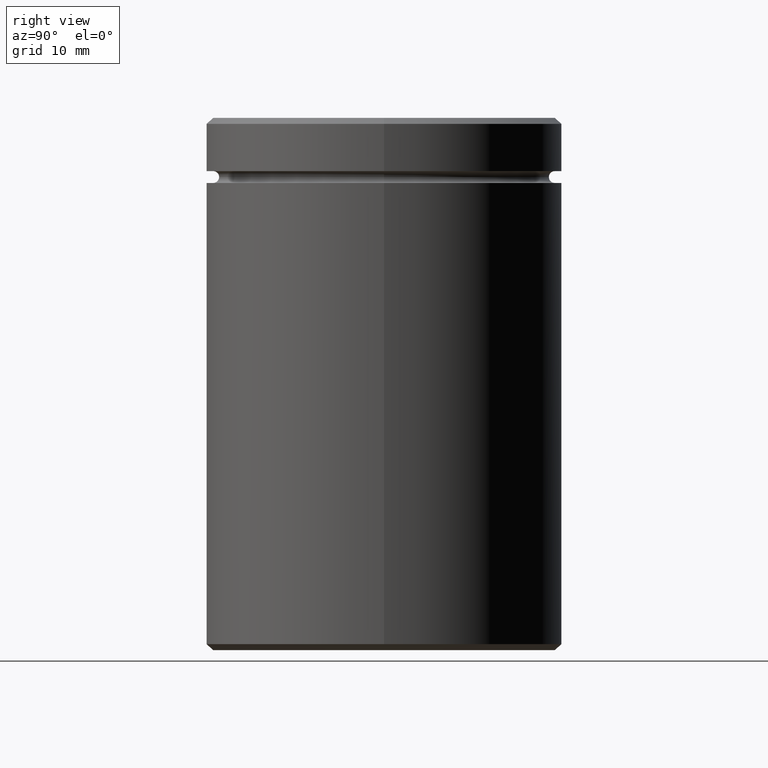
[diagram: clean part render]
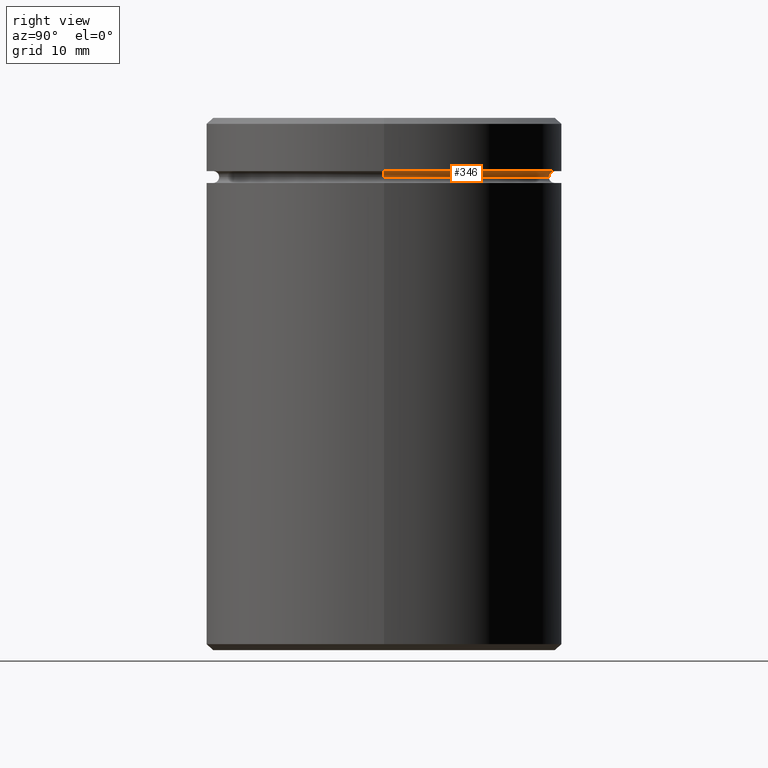
[diagram: same view with one face highlighted and labeled with its STEP entity id]
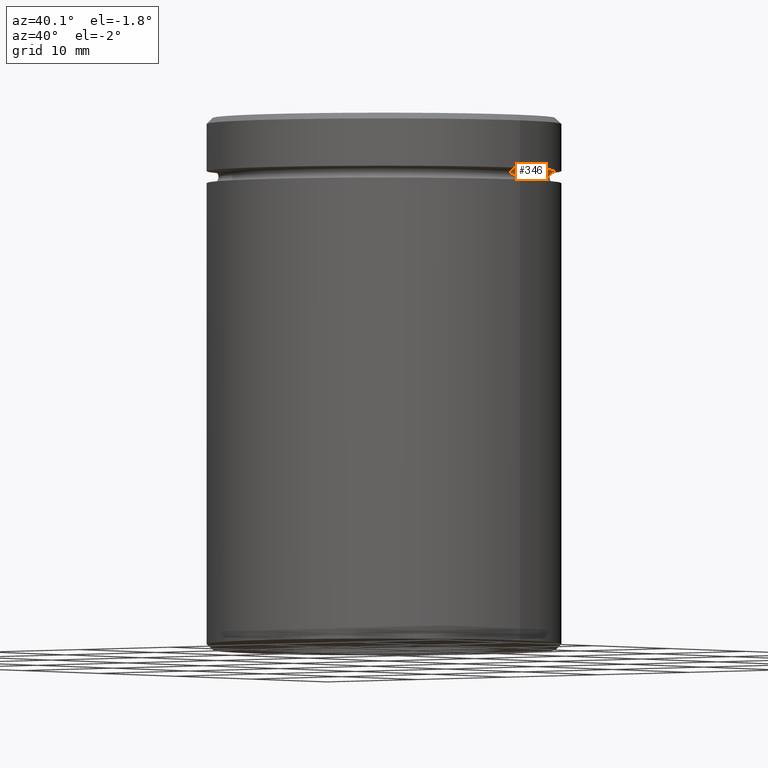
[diagram: same view with one face highlighted and labeled with its STEP entity id]
A machine part, right view. The second image highlights one B-rep face of the part: STEP entity #346.
A second angle (auxiliary view) of the same face is appended — the face is thin or edge-on in the first view.
In plain terms, the highlighted toroidal blend (fillet) surface has major radius 14.5 mm and minor (blend) radius 0.5 mm.
Its self-contained STEP definition (entity closure, byte-faithful):
#7 = CIRCLE ( 'NONE', #230, 0.5000000000000004441 ) ;
#15 = CARTESIAN_POINT ( 'NONE',  ( -14.49999999999999822, 0.000000000000000000, -4.500000000000000888 ) ) ;
#43 = EDGE_LOOP ( 'NONE', ( #231, #51, #487, #227 ) ) ;
#44 = CARTESIAN_POINT ( 'NONE',  ( 0.000000000000000000, 0.000000000000000000, -4.500000000000000888 ) ) ;
#51 = ORIENTED_EDGE ( 'NONE', *, *, #274, .T. ) ;
#95 = VERTEX_POINT ( 'NONE', #15 ) ;
#114 = AXIS2_PLACEMENT_3D ( 'NONE', #439, #564, #302 ) ;
#125 = DIRECTION ( 'NONE',  ( 0.000000000000000000, 0.000000000000000000, -1.000000000000000000 ) ) ;
#142 = CIRCLE ( 'NONE', #396, 14.49999999999999822 ) ;
#164 = AXIS2_PLACEMENT_3D ( 'NONE', #463, #432, #549 ) ;
#168 = DIRECTION ( 'NONE',  ( -1.000000000000000000, 0.000000000000000000, 0.000000000000000000 ) ) ;
#176 = DIRECTION ( 'NONE',  ( -0.000000000000000000, -0.000000000000000000, 1.000000000000000000 ) ) ;
#177 = FACE_OUTER_BOUND ( 'NONE', #43, .T. ) ;
#181 = EDGE_CURVE ( 'NONE', #441, #95, #7, .T. ) ;
#211 = CARTESIAN_POINT ( 'NONE',  ( 13.99999999999999822, 0.000000000000000000, -4.999999999999999112 ) ) ;
#227 = ORIENTED_EDGE ( 'NONE', *, *, #556, .F. ) ;
#230 = AXIS2_PLACEMENT_3D ( 'NONE', #507, #328, #543 ) ;
#231 = ORIENTED_EDGE ( 'NONE', *, *, #233, .F. ) ;
#233 = EDGE_CURVE ( 'NONE', #546, #534, #413, .T. ) ;
#249 = TOROIDAL_SURFACE ( 'NONE', #530, 14.49999999999999822, 0.5000000000000000000 ) ;
#251 = CARTESIAN_POINT ( 'NONE',  ( -13.99999999999999822, 1.745121688784978228E-15, -4.999999999999999112 ) ) ;
#274 = EDGE_CURVE ( 'NONE', #546, #441, #486, .T. ) ;
#302 = DIRECTION ( 'NONE',  ( 1.000000000000000000, 0.000000000000000000, 0.000000000000000000 ) ) ;
#306 = DIRECTION ( 'NONE',  ( -1.000000000000000000, 0.000000000000000000, 0.000000000000000000 ) ) ;
#328 = DIRECTION ( 'NONE',  ( -0.000000000000000000, -1.000000000000000000, -0.000000000000000000 ) ) ;
#346 = ADVANCED_FACE ( 'NONE', ( #177 ), #249, .F. ) ;
#396 = AXIS2_PLACEMENT_3D ( 'NONE', #44, #176, #306 ) ;
#413 = CIRCLE ( 'NONE', #164, 0.5000000000000004441 ) ;
#430 = CARTESIAN_POINT ( 'NONE',  ( 14.49999999999999822, 1.775737858763662015E-15, -4.500000000000000888 ) ) ;
#432 = DIRECTION ( 'NONE',  ( -1.224646799147353207E-16, 1.000000000000000000, 0.000000000000000000 ) ) ;
#439 = CARTESIAN_POINT ( 'NONE',  ( 0.000000000000000000, 0.000000000000000000, -4.999999999999999112 ) ) ;
#441 = VERTEX_POINT ( 'NONE', #251 ) ;
#463 = CARTESIAN_POINT ( 'NONE',  ( 14.49999999999999822, 1.775737858763662015E-15, -5.000000000000000888 ) ) ;
#477 = CARTESIAN_POINT ( 'NONE',  ( 0.000000000000000000, 0.000000000000000000, -5.000000000000000888 ) ) ;
#486 = CIRCLE ( 'NONE', #114, 13.99999999999999822 ) ;
#487 = ORIENTED_EDGE ( 'NONE', *, *, #181, .T. ) ;
#507 = CARTESIAN_POINT ( 'NONE',  ( -14.49999999999999822, 0.000000000000000000, -5.000000000000000888 ) ) ;
#530 = AXIS2_PLACEMENT_3D ( 'NONE', #477, #125, #168 ) ;
#534 = VERTEX_POINT ( 'NONE', #430 ) ;
#543 = DIRECTION ( 'NONE',  ( 0.000000000000000000, 0.000000000000000000, -1.000000000000000000 ) ) ;
#546 = VERTEX_POINT ( 'NONE', #211 ) ;
#549 = DIRECTION ( 'NONE',  ( -1.000000000000000000, -1.224646799147353454E-16, 0.000000000000000000 ) ) ;
#556 = EDGE_CURVE ( 'NONE', #534, #95, #142, .T. ) ;
#564 = DIRECTION ( 'NONE',  ( -0.000000000000000000, -0.000000000000000000, 1.000000000000000000 ) ) ;